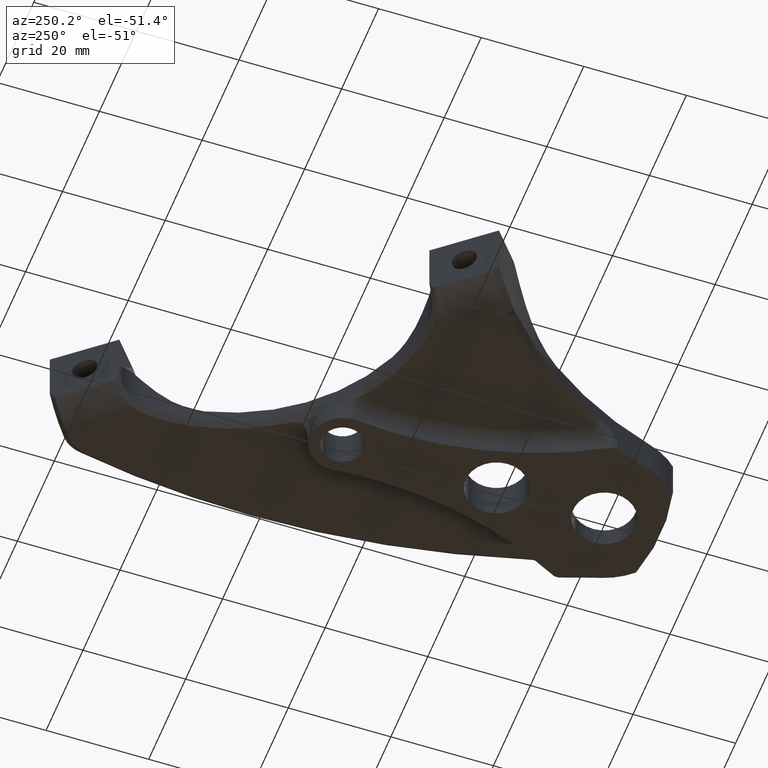
[diagram: clean part render]
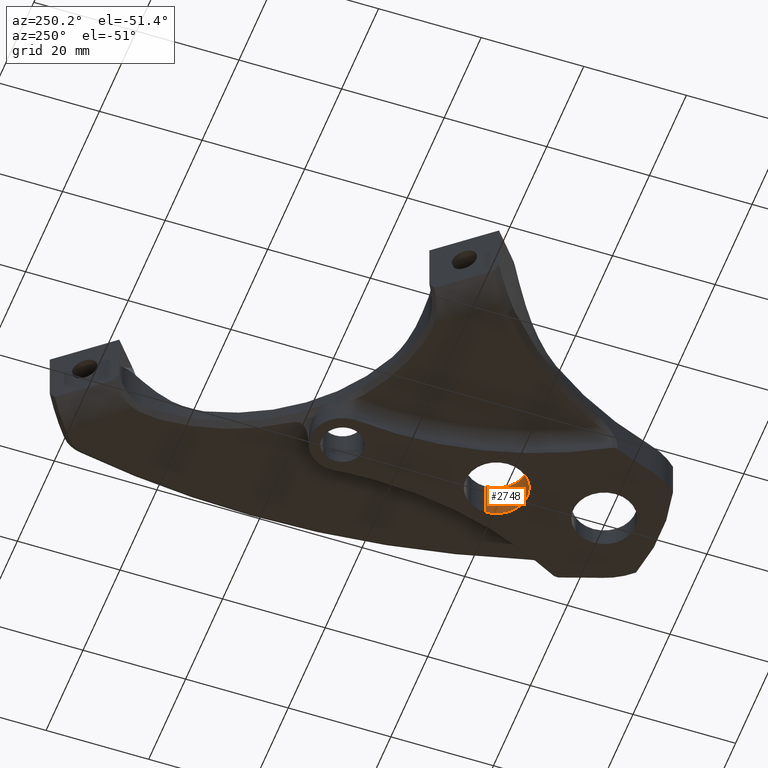
[diagram: same view with one face highlighted and labeled with its STEP entity id]
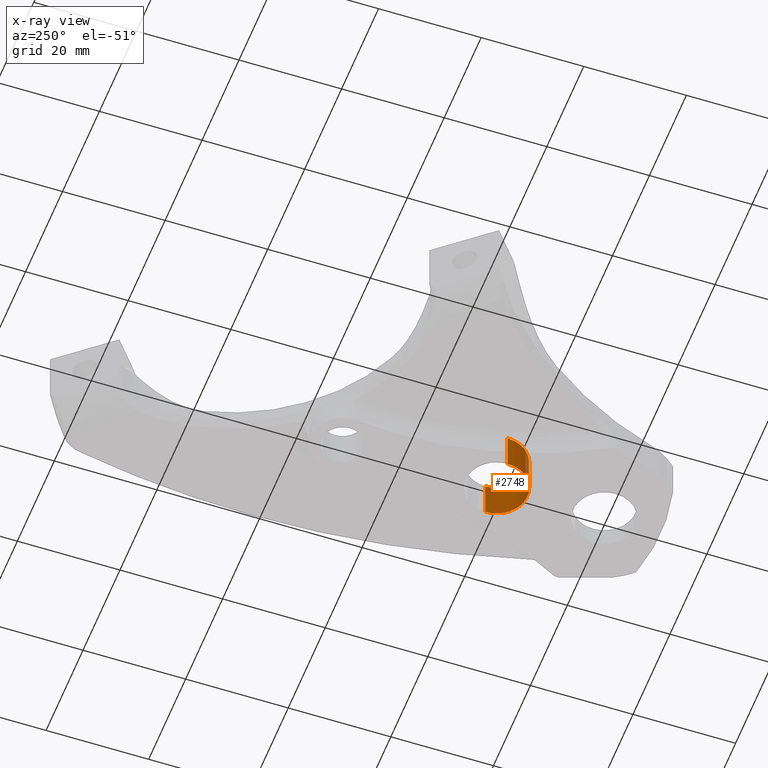
[diagram: x-ray of the same camera — body ghosted, the highlighted face saturated]
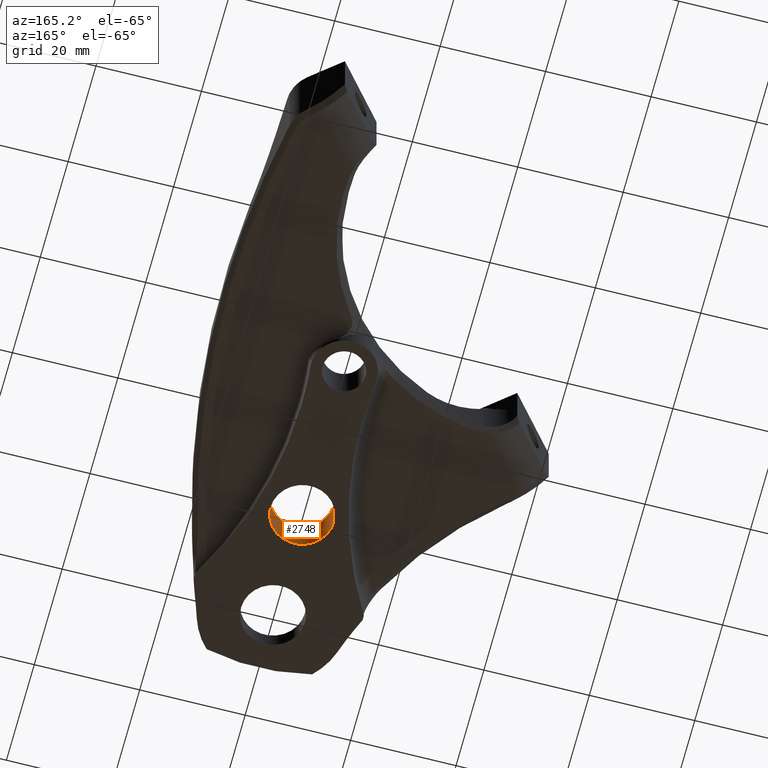
[diagram: same view with one face highlighted and labeled with its STEP entity id]
A machine part, auxiliary view. The second image highlights one B-rep face of the part: STEP entity #2748.
The next image is the same camera in x-ray: the body ghosted, the highlighted face saturated — about 0% of this face is hidden behind the body in this view.
A second angle (auxiliary view) of the same face is appended — the face is thin or edge-on in the first view.
In plain terms, the highlighted cylindrical surface (edge-blend (fillet) strip) has radius 6 mm, axis along (-0, -0, 1).
Its self-contained STEP definition (entity closure, byte-faithful):
#383 = ORIENTED_EDGE ( 'NONE', *, *, #2512, .F. ) ;
#462 = CARTESIAN_POINT ( 'NONE',  ( -6.000000000000000900, 20.99999999999998200, -4.000000000000003600 ) ) ;
#489 = DIRECTION ( 'NONE',  ( -0.0000000000000000000, -0.0000000000000000000, 1.000000000000000000 ) ) ;
#505 = CARTESIAN_POINT ( 'NONE',  ( 6.000000000000000900, 20.99999999999998200, -4.000000000000003600 ) ) ;
#639 = VECTOR ( 'NONE', #1022, 1000.000000000000000 ) ;
#677 = VERTEX_POINT ( 'NONE', #757 ) ;
#757 = CARTESIAN_POINT ( 'NONE',  ( -6.000000000000000900, 20.99999999999998200, 3.499999999999999600 ) ) ;
#1022 = DIRECTION ( 'NONE',  ( -0.0000000000000000000, -0.0000000000000000000, 1.000000000000000000 ) ) ;
#1098 = AXIS2_PLACEMENT_3D ( 'NONE', #3058, #3502, #3361 ) ;
#1195 = CARTESIAN_POINT ( 'NONE',  ( 0.0000000000000000000, 20.99999999999998200, -4.000000000000003600 ) ) ;
#1228 = DIRECTION ( 'NONE',  ( 0.0000000000000000000, 0.0000000000000000000, 1.000000000000000000 ) ) ;
#1240 = EDGE_CURVE ( 'NONE', #2524, #2344, #1781, .T. ) ;
#1375 = EDGE_CURVE ( 'NONE', #2344, #677, #2173, .T. ) ;
#1424 = ORIENTED_EDGE ( 'NONE', *, *, #1375, .F. ) ;
#1670 = CYLINDRICAL_SURFACE ( 'NONE', #2210, 6.000000000000000900 ) ;
#1781 = LINE ( 'NONE', #2526, #1903 ) ;
#1842 = CARTESIAN_POINT ( 'NONE',  ( 6.000000000000000900, 20.99999999999998200, 3.499999999999999600 ) ) ;
#1882 = VERTEX_POINT ( 'NONE', #462 ) ;
#1903 = VECTOR ( 'NONE', #3190, 1000.000000000000000 ) ;
#2035 = CARTESIAN_POINT ( 'NONE',  ( 0.0000000000000000000, 20.99999999999998200, -4.000000000000003600 ) ) ;
#2092 = CARTESIAN_POINT ( 'NONE',  ( -6.000000000000000900, 20.99999999999998200, -4.000000000000003600 ) ) ;
#2173 = CIRCLE ( 'NONE', #1098, 6.000000000000000900 ) ;
#2210 = AXIS2_PLACEMENT_3D ( 'NONE', #2035, #489, #2532 ) ;
#2344 = VERTEX_POINT ( 'NONE', #1842 ) ;
#2504 = FACE_OUTER_BOUND ( 'NONE', #3147, .T. ) ;
#2512 = EDGE_CURVE ( 'NONE', #1882, #2524, #3447, .T. ) ;
#2524 = VERTEX_POINT ( 'NONE', #505 ) ;
#2526 = CARTESIAN_POINT ( 'NONE',  ( 6.000000000000000900, 20.99999999999998200, -4.000000000000003600 ) ) ;
#2532 = DIRECTION ( 'NONE',  ( 1.000000000000000000, 0.0000000000000000000, 0.0000000000000000000 ) ) ;
#2635 = AXIS2_PLACEMENT_3D ( 'NONE', #1195, #1228, #2777 ) ;
#2748 = ADVANCED_FACE ( 'NONE', ( #2504 ), #1670, .F. ) ;
#2777 = DIRECTION ( 'NONE',  ( 1.000000000000000000, 0.0000000000000000000, 0.0000000000000000000 ) ) ;
#2907 = ORIENTED_EDGE ( 'NONE', *, *, #3066, .T. ) ;
#3058 = CARTESIAN_POINT ( 'NONE',  ( 0.0000000000000000000, 20.99999999999998200, 3.499999999999999600 ) ) ;
#3060 = ORIENTED_EDGE ( 'NONE', *, *, #1240, .F. ) ;
#3066 = EDGE_CURVE ( 'NONE', #1882, #677, #3417, .T. ) ;
#3147 = EDGE_LOOP ( 'NONE', ( #383, #2907, #1424, #3060 ) ) ;
#3190 = DIRECTION ( 'NONE',  ( -0.0000000000000000000, -0.0000000000000000000, 1.000000000000000000 ) ) ;
#3361 = DIRECTION ( 'NONE',  ( 1.000000000000000000, 0.0000000000000000000, 0.0000000000000000000 ) ) ;
#3417 = LINE ( 'NONE', #2092, #639 ) ;
#3447 = CIRCLE ( 'NONE', #2635, 6.000000000000000900 ) ;
#3502 = DIRECTION ( 'NONE',  ( -0.0000000000000000000, -0.0000000000000000000, -1.000000000000000000 ) ) ;